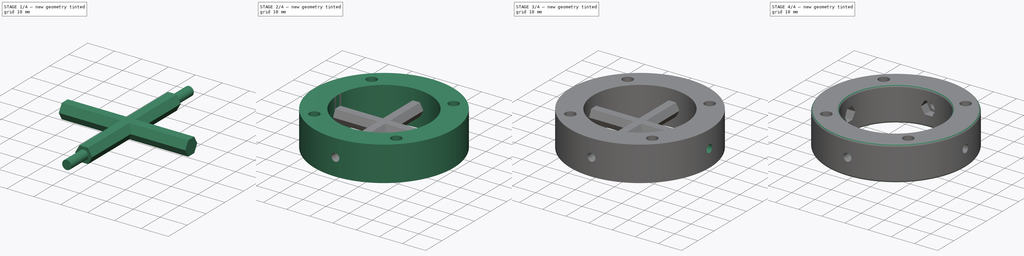
[diagram: build sequence overview — one tinted view per stage of 4, left to right]
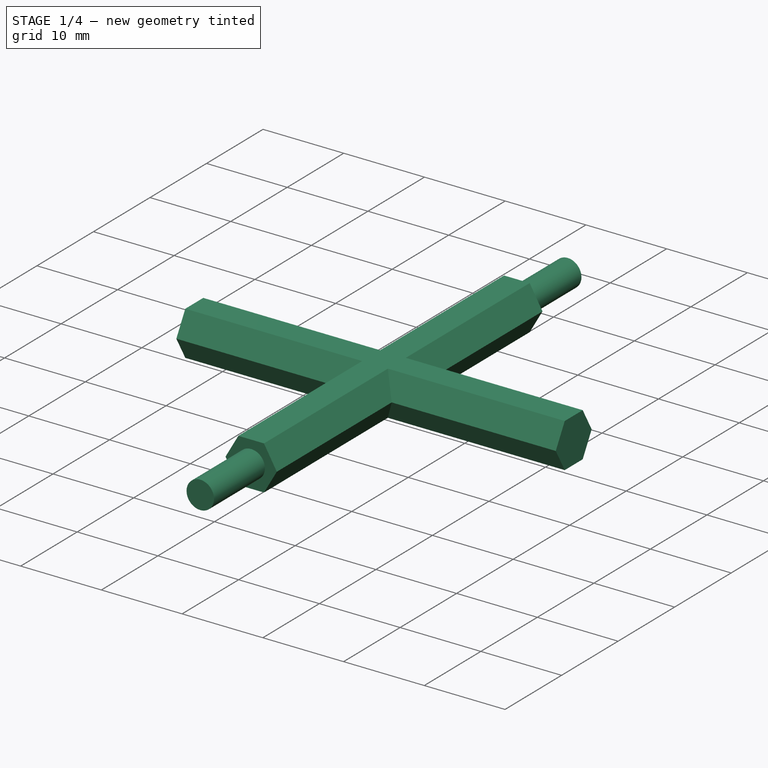
[diagram: stage 1 of 4 — iso view after this stage's code; geometry added in this stage tinted green]
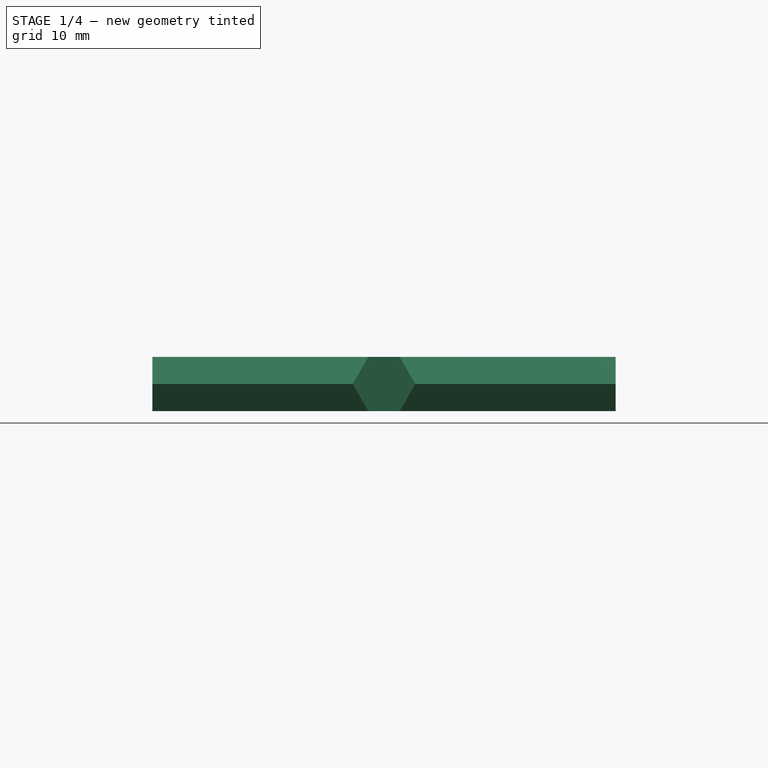
[diagram: stage 1 of 4 — front view after this stage's code; geometry added in this stage tinted green]
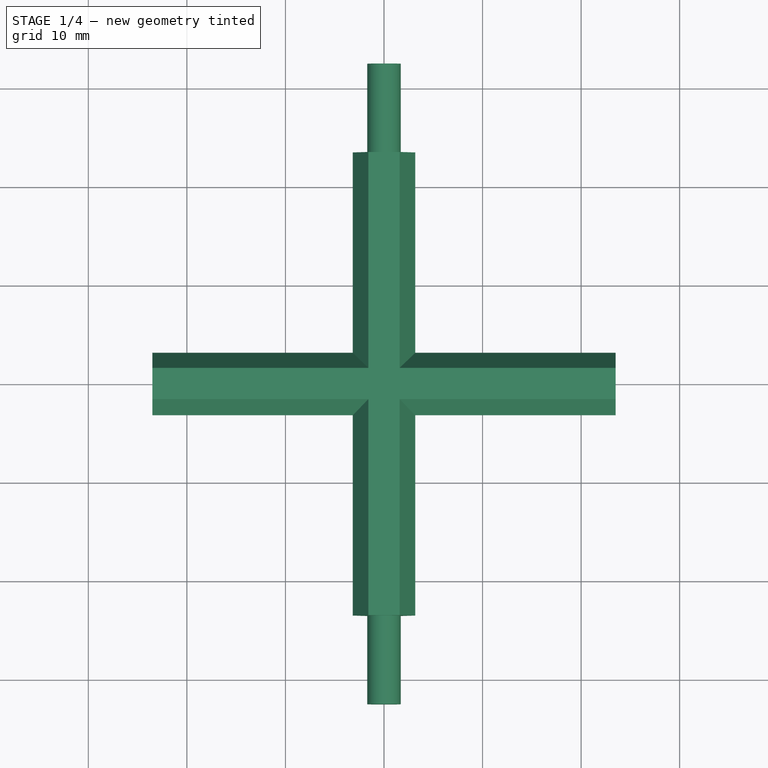
[diagram: stage 1 of 4 — top view after this stage's code; geometry added in this stage tinted green]
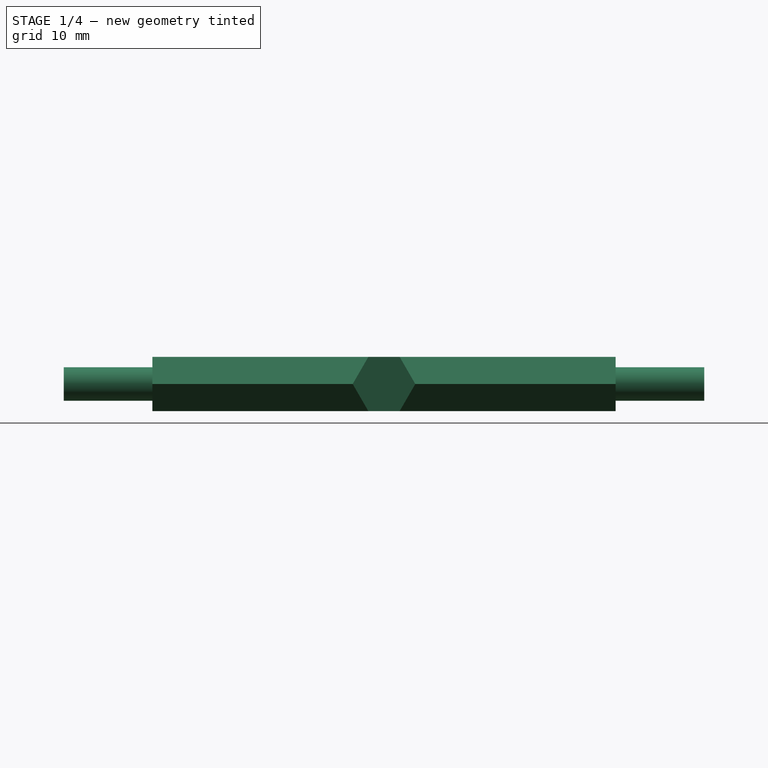
[diagram: stage 1 of 4 — right view after this stage's code; geometry added in this stage tinted green]
FCSTD DOCUMENT  (FreeCAD 0.17R5235 (Git shallow))
Label: C1021-1_shaft_collar
License: CreativeCommons Attribution-ShareAlike
LicenseURL: http://creativecommons.org/licenses/by-sa/4.0/
objects: Sketcher::SketchObject×6, PartDesign::Pad×5, Part::Cut×4, PartDesign::Pocket×1, PartDesign::Fillet×1
note: 23 computed .brp shape members not serialized (recipe doc carries the construction recipe); baked Part::Feature solids carry a one-line shape summary decoded from their .brp

FEATURE [Sketcher::SketchObject] Sketch003  label="Sketch-M3-pocket2"
  MapMode = 5
  Placement = pos=(0,0,0) rot=(1,0,0;1.5708rad)
  sketch-geometry (1):
    g0: Circle CenterX=0 CenterY=0 CenterZ=0 NormalX=0 NormalY=0 NormalZ=1 AngleXU=0 Radius=1.7
  constraints (3):
    c: PointOnObject(g0,g-2)
    c: Radius(g0) = 1.7
    c: Coincident(g0,g-1)
FEATURE [PartDesign::Pad] Pad001  label="Pad-M3-pocket2"
  Length = 65
  Length2 = 100
  Midplane = true
  Placement = pos=(0,0,0) rot=(1,0,0;1.5708rad)
  Profile = -> Sketch003
  Type = 0
FEATURE [Sketcher::SketchObject] Sketch005  label="Sketch-M3Nut"
  MapMode = 5
  Placement = pos=(0,0,0) rot=(0.57735,0.57735,0.57735;2.0944rad)
  sketch-geometry (7):
    g0: LineSegment StartX=3.17543 StartY=0 StartZ=0 EndX=1.58771 EndY=2.75 EndZ=0
    g1: LineSegment StartX=1.58771 StartY=2.75 StartZ=0 EndX=-1.58771 EndY=2.75 EndZ=0
    g2: LineSegment StartX=-1.58771 StartY=2.75 StartZ=0 EndX=-3.17543 EndY=0 EndZ=0
    g3: LineSegment StartX=-3.17543 StartY=0 StartZ=0 EndX=-1.58771 EndY=-2.75 EndZ=0
    g4: LineSegment StartX=-1.58771 StartY=-2.75 StartZ=0 EndX=1.58771 EndY=-2.75 EndZ=0
    g5: LineSegment StartX=1.58771 StartY=-2.75 StartZ=0 EndX=3.17543 EndY=0 EndZ=0
    g6: Circle [constr] CenterX=0 CenterY=0 CenterZ=0 NormalX=0 NormalY=0 NormalZ=1 AngleXU=0 Radius=3.17543
  constraints (16):
    c: Coincident(g0,g1)
    c: Coincident(g1,g2)
    c: Coincident(g2,g3)
    c: Coincident(g3,g4)
    c: Coincident(g4,g5)
    c: Coincident(g5,g0)
    c: Equal(g0, g1-g5) x5
    c: PointOnObject(g0,g6)
    c: PointOnObject(g1,g6)
    c: PointOnObject(g2,g6)
    c: PointOnObject(g3,g6)
    c: PointOnObject(g4,g6)
    c: PointOnObject(g5,g6)
    c: Coincident(g6,g-1)
    c: Horizontal(g1)
    c: DistanceY(g4,g0) = 5.5
FEATURE [PartDesign::Pad] Pad003  label="Pad-M3Nut"
  Length = 47
  Length2 = 100
  Midplane = true
  Placement = pos=(0,0,0) rot=(0.57735,0.57735,0.57735;2.0944rad)
  Profile = -> Sketch005
  Type = 0
FEATURE [Sketcher::SketchObject] Sketch006  label="Sketch-M3Nut1"
  MapMode = 5
  Placement = pos=(0,0,0) rot=(1,0,0;1.5708rad)
  sketch-geometry (7):
    g0: LineSegment StartX=1.58771 StartY=-2.75 StartZ=0 EndX=3.17543 EndY=0 EndZ=0
    g1: LineSegment StartX=3.17543 StartY=0 StartZ=0 EndX=1.58771 EndY=2.75 EndZ=0
    g2: LineSegment StartX=1.58771 StartY=2.75 StartZ=0 EndX=-1.58771 EndY=2.75 EndZ=0
    g3: LineSegment StartX=-1.58771 StartY=2.75 StartZ=0 EndX=-3.17543 EndY=0 EndZ=0
    g4: LineSegment StartX=-3.17543 StartY=0 StartZ=0 EndX=-1.58771 EndY=-2.75 EndZ=0
    g5: LineSegment StartX=-1.58771 StartY=-2.75 StartZ=0 EndX=1.58771 EndY=-2.75 EndZ=0
    g6: Circle [constr] CenterX=0 CenterY=0 CenterZ=0 NormalX=0 NormalY=0 NormalZ=1 AngleXU=0 Radius=3.17543
  constraints (16):
    c: Coincident(g0,g1)
    c: Coincident(g1,g2)
    c: Coincident(g2,g3)
    c: Coincident(g3,g4)
    c: Coincident(g4,g5)
    c: Coincident(g5,g0)
    c: Equal(g0, g1-g5) x5
    c: PointOnObject(g0,g6)
    c: PointOnObject(g1,g6)
    c: PointOnObject(g2,g6)
    c: PointOnObject(g3,g6)
    c: PointOnObject(g4,g6)
    c: PointOnObject(g5,g6)
    c: Coincident(g6,g-1)
    c: Horizontal(g2)
    c: DistanceY(g0,g1) = 5.5
FEATURE [PartDesign::Pad] Pad004  label="Pad-M3Nut1"
  Length = 47
  Length2 = 100
  Midplane = true
  Placement = pos=(0,0,0) rot=(1,0,0;1.5708rad)
  Profile = -> Sketch006
  Type = 0
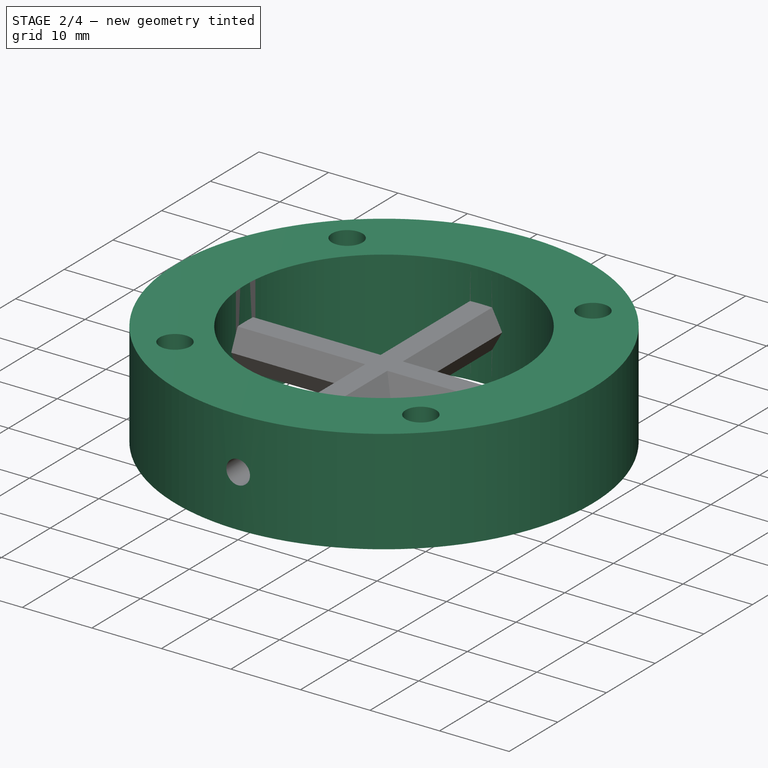
[diagram: stage 2 of 4 — iso view after this stage's code; geometry added in this stage tinted green]
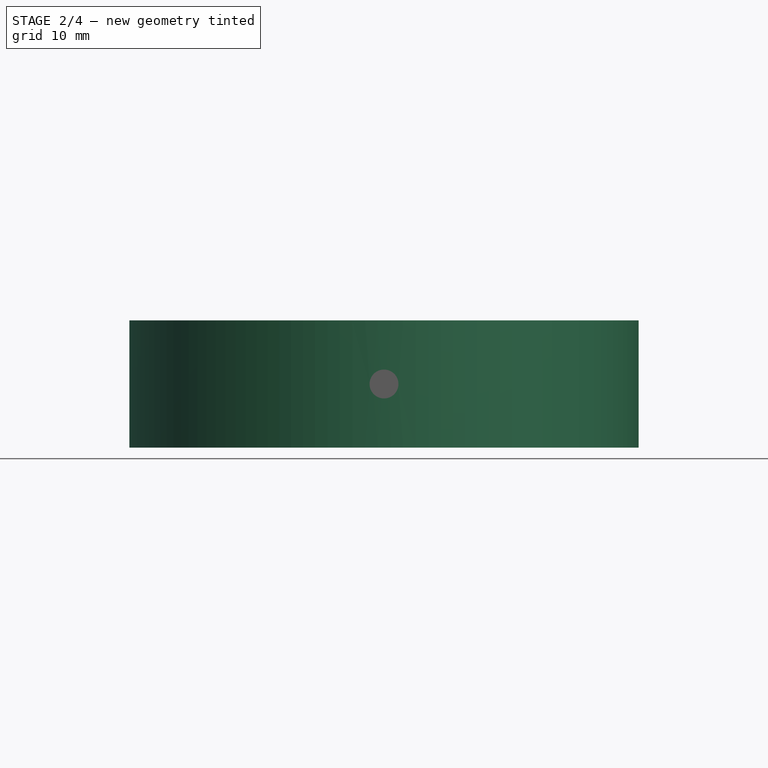
[diagram: stage 2 of 4 — front view after this stage's code; geometry added in this stage tinted green]
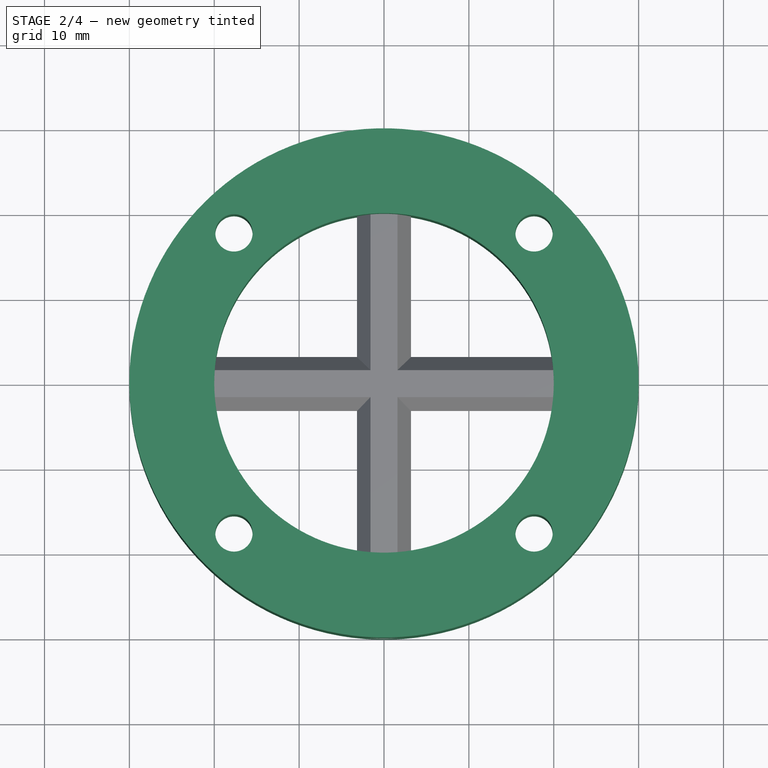
[diagram: stage 2 of 4 — top view after this stage's code; geometry added in this stage tinted green]
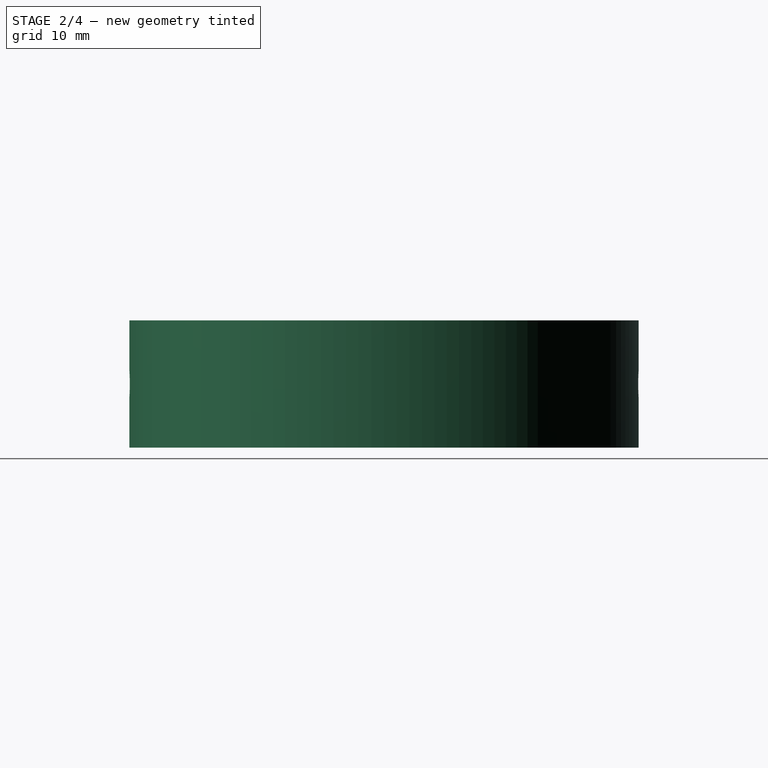
[diagram: stage 2 of 4 — right view after this stage's code; geometry added in this stage tinted green]
FEATURE [Sketcher::SketchObject] Sketch  label="Sketch-main"
  MapMode = 5
  sketch-geometry (2):
    g0: Circle CenterX=0 CenterY=0 CenterZ=0 NormalX=0 NormalY=0 NormalZ=1 AngleXU=0 Radius=20
    g1: Circle CenterX=0 CenterY=0 CenterZ=0 NormalX=0 NormalY=0 NormalZ=1 AngleXU=0 Radius=30
  constraints (4):
    c: Coincident(g0,g-1)
    c: Radius(g0) = 20
    c: Coincident(g1,g-1)
    c: Radius(g1) = 30
FEATURE [PartDesign::Pad] Pad  label="Pad-main"
  Length = 15
  Length2 = 100
  Midplane = true
  Profile = -> Sketch
  Type = 0
FEATURE [Sketcher::SketchObject] Sketch001  label="Sketch-flang-holes"
  MapMode = 5
  Placement = pos=(0,0,7.5) rot=(0,0,1;0rad)
  Support = -> [Pad]
  sketch-geometry (7):
    g0: Circle CenterX=-17.6777 CenterY=17.6777 CenterZ=0 NormalX=0 NormalY=0 NormalZ=1 AngleXU=0 Radius=2.2
    g1: Circle CenterX=17.6777 CenterY=17.6777 CenterZ=0 NormalX=0 NormalY=0 NormalZ=1 AngleXU=0 Radius=2.2
    g2: Circle CenterX=-17.6777 CenterY=-17.6777 CenterZ=0 NormalX=0 NormalY=0 NormalZ=1 AngleXU=0 Radius=2.2
    g3: Circle CenterX=17.6777 CenterY=-17.6777 CenterZ=0 NormalX=0 NormalY=0 NormalZ=1 AngleXU=0 Radius=2.2
    g4: Circle [constr] CenterX=0 CenterY=0 CenterZ=0 NormalX=0 NormalY=0 NormalZ=1 AngleXU=0 Radius=25
    g5: LineSegment [constr] StartX=-17.6777 StartY=17.6777 StartZ=0 EndX=17.6777 EndY=-17.6777 EndZ=0
    g6: LineSegment [constr] StartX=-17.6777 StartY=-17.6777 StartZ=0 EndX=17.6777 EndY=17.6777 EndZ=0
  constraints (18):
    c: Coincident(g4,g-1)
    c: Equal(g3,g1)
    c: Equal(g1,g0)
    c: Equal(g0,g2)
    c: Radius(g1) = 2.2
    c: Radius(g4) = 25
    c: PointOnObject(g3,g4)
    c: PointOnObject(g1,g4)
    c: PointOnObject(g0,g4)
    c: PointOnObject(g2,g4)
    c: Coincident(g5,g0)
    c: Coincident(g5,g3)
    c: PointOnObject(g-1,g5)
    c: Coincident(g6,g2)
    c: Coincident(g6,g1)
    c: PointOnObject(g-1,g6)
    c: Perpendicular(g6,g5)
    c: Angle(g5,g-1) = 0.785398
FEATURE [PartDesign::Pocket] Pocket  label="Pocket-flange-holes"
  Length = 5
  Length2 = 100
  Profile = -> Sketch001
  Type = 1
FEATURE [Part::Cut] Cut  label="Cut-M3Hole-pocket"
  Base = -> Pocket
  Tool = -> Pad001
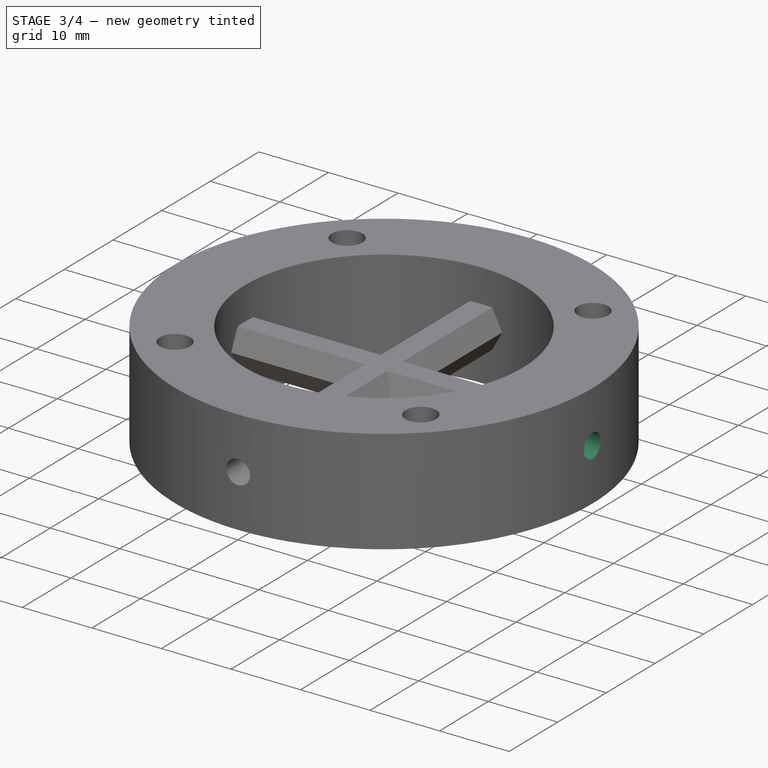
[diagram: stage 3 of 4 — iso view after this stage's code; geometry added in this stage tinted green]
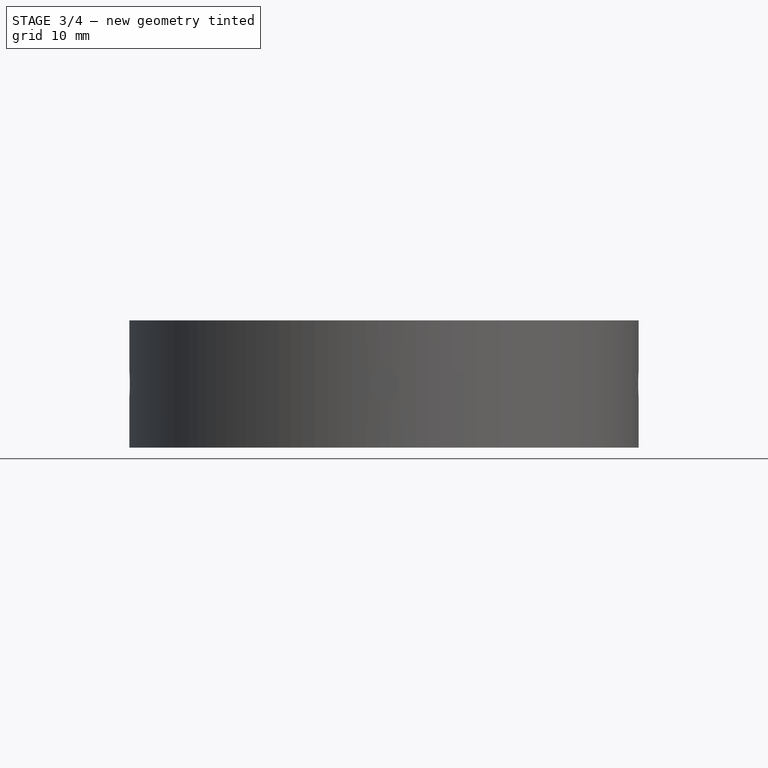
[diagram: stage 3 of 4 — front view after this stage's code; geometry added in this stage tinted green]
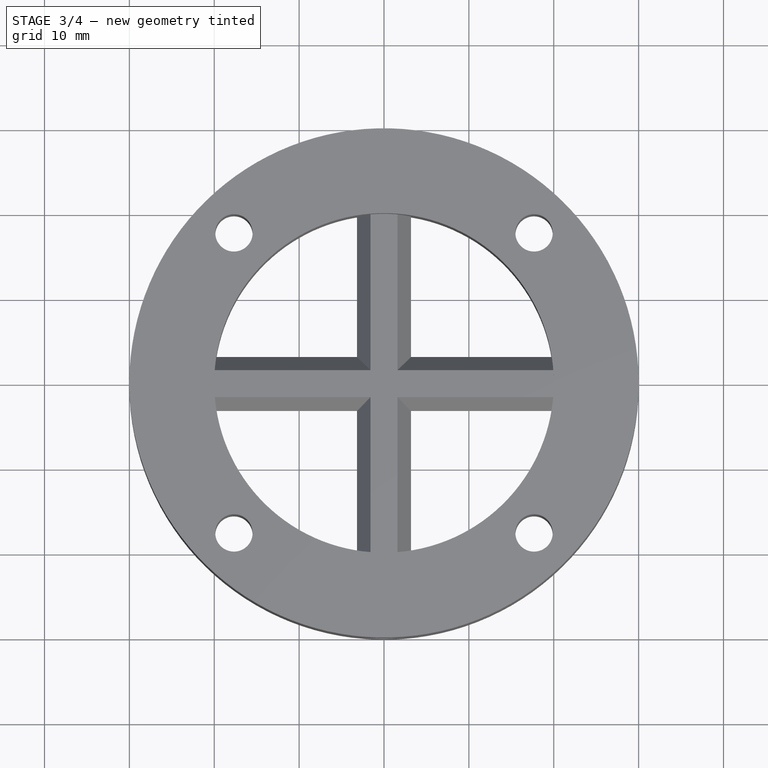
[diagram: stage 3 of 4 — top view after this stage's code; geometry added in this stage tinted green]
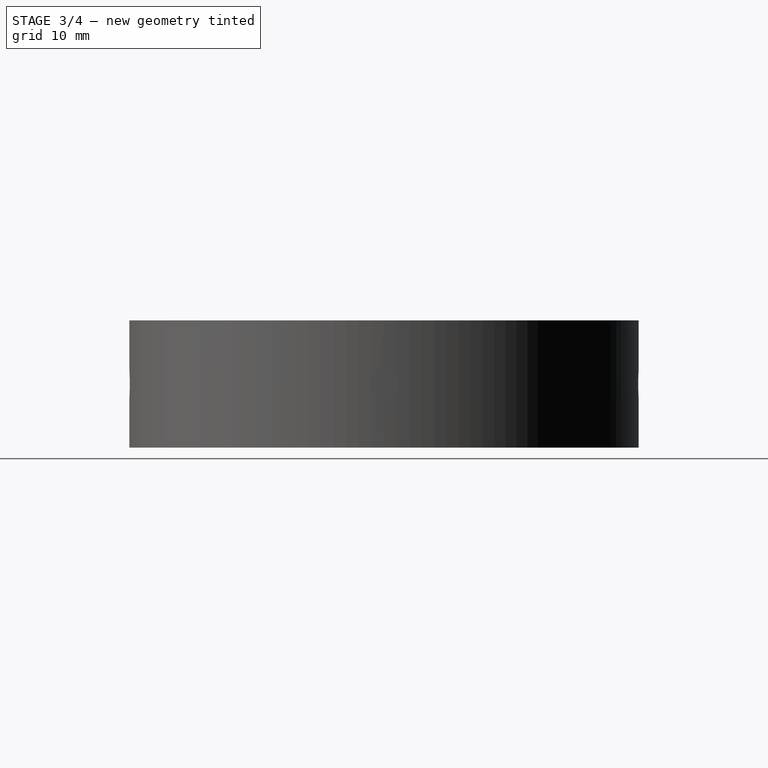
[diagram: stage 3 of 4 — right view after this stage's code; geometry added in this stage tinted green]
FEATURE [Sketcher::SketchObject] Sketch004  label="Sketch-M3-pocket1"
  MapMode = 5
  Placement = pos=(0,0,0) rot=(0.57735,0.57735,0.57735;2.0944rad)
  sketch-geometry (1):
    g0: Circle CenterX=0 CenterY=0 CenterZ=0 NormalX=0 NormalY=0 NormalZ=1 AngleXU=0 Radius=1.7
  constraints (3):
    c: Radius(g0) = 1.7
    c: PointOnObject(g0,g-2)
    c: Coincident(g0,g-1)
FEATURE [PartDesign::Pad] Pad002  label="Pad-M3-pocket1"
  Length = 65
  Length2 = 100
  Midplane = true
  Placement = pos=(0,0,0) rot=(0.57735,0.57735,0.57735;2.0944rad)
  Profile = -> Sketch004
  Type = 0
FEATURE [Part::Cut] Cut001  label="Cut-M3Hole-pocket1"
  Base = -> Cut
  Tool = -> Pad002
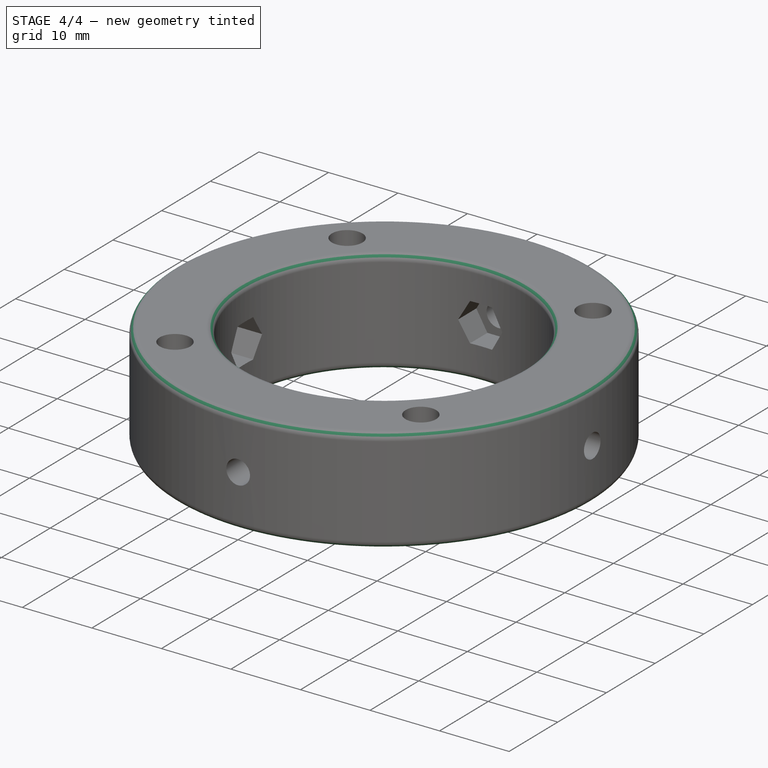
[diagram: stage 4 of 4 — iso view after this stage's code; geometry added in this stage tinted green]
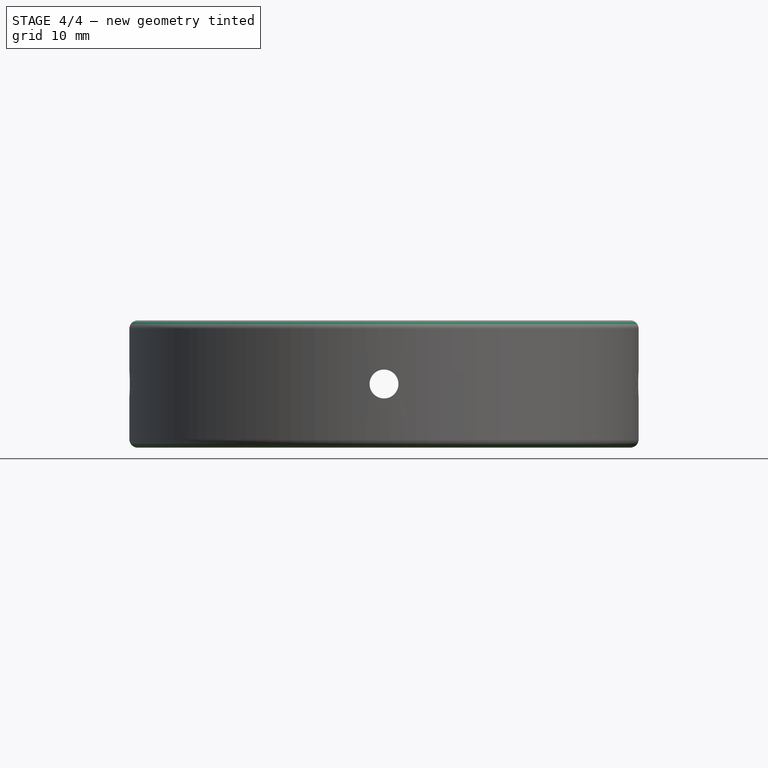
[diagram: stage 4 of 4 — front view after this stage's code; geometry added in this stage tinted green]
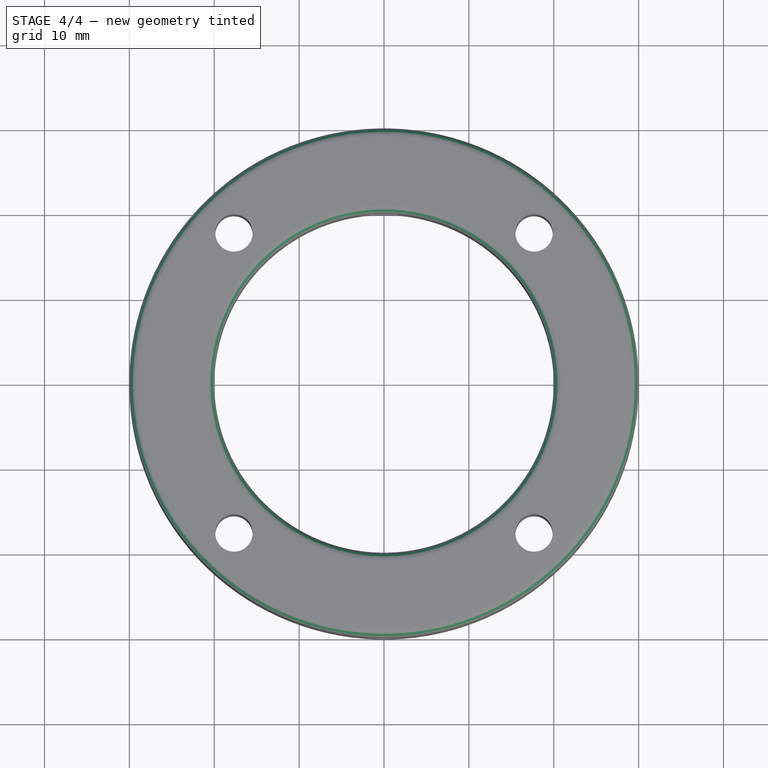
[diagram: stage 4 of 4 — top view after this stage's code; geometry added in this stage tinted green]
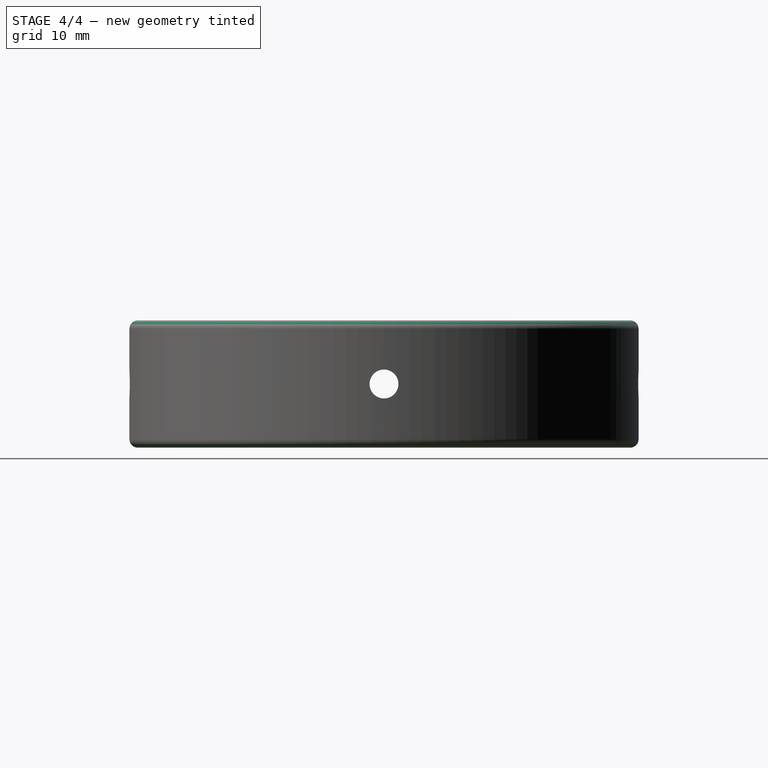
[diagram: stage 4 of 4 — right view after this stage's code; geometry added in this stage tinted green]
FEATURE [Part::Cut] Cut002  label="Cut-M3Hole"
  Base = -> Cut001
  Tool = -> Pad003
FEATURE [Part::Cut] Cut003  label="Cut-M3Hole1"
  Base = -> Cut002
  Tool = -> Pad004
FEATURE [PartDesign::Fillet] Fillet
  Base = -> Cut003 [Edge4,Edge7,Edge14,Edge19]
  Radius = 1
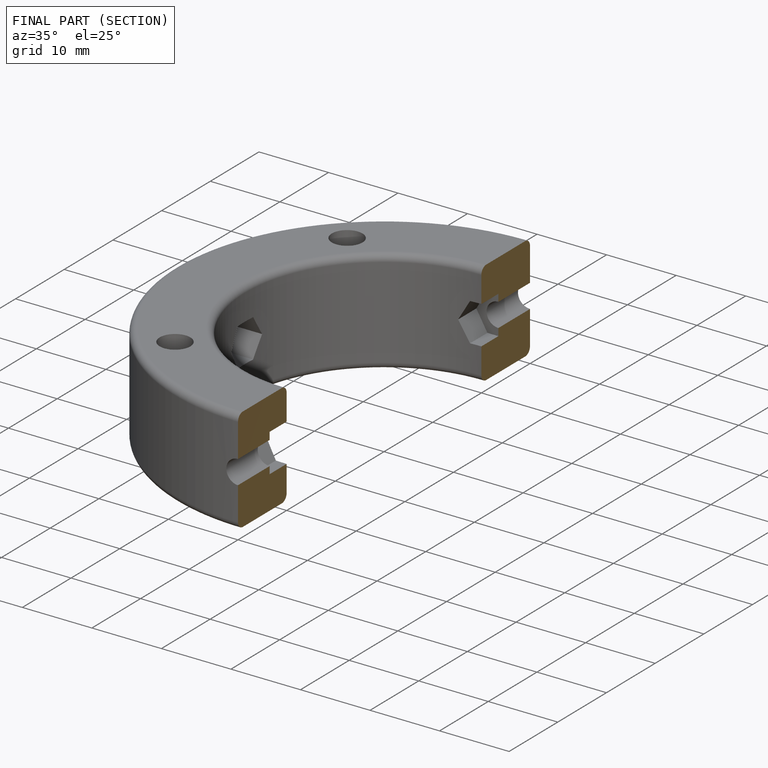
[diagram: finished part — half-section view (interior)]
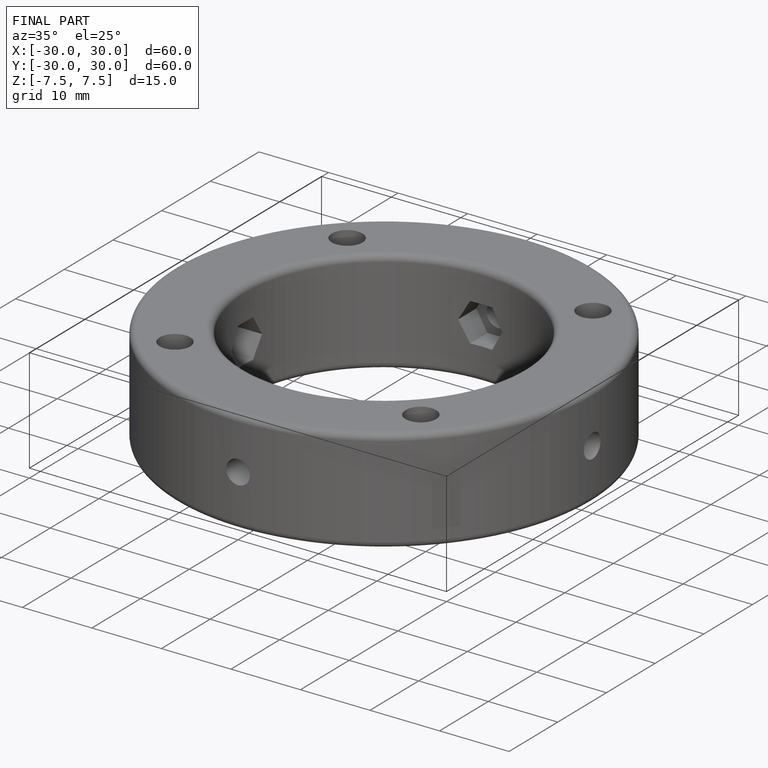
[diagram: finished part — iso view with bounding-box wireframe]
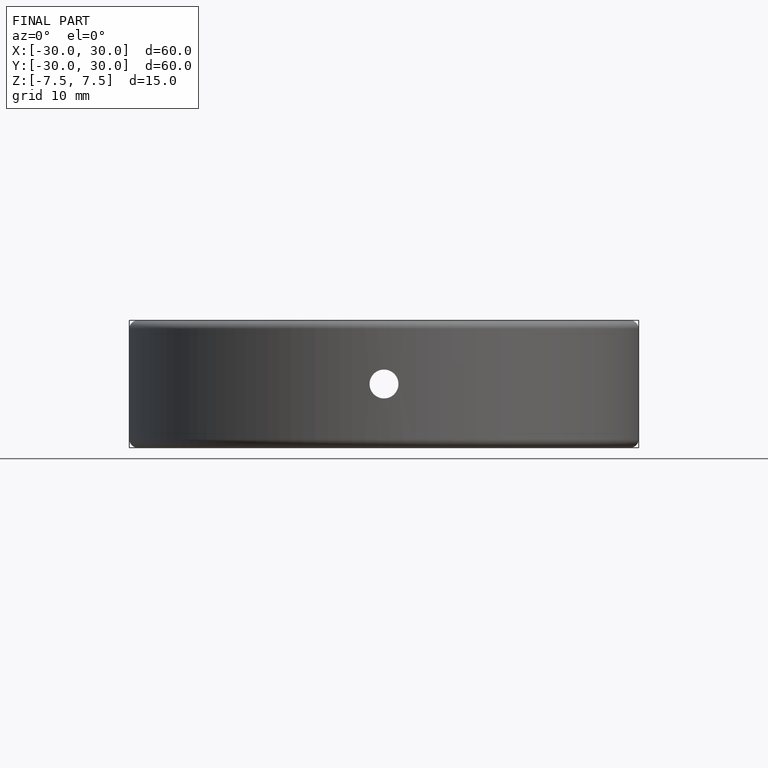
[diagram: finished part — front view with bounding-box wireframe]
